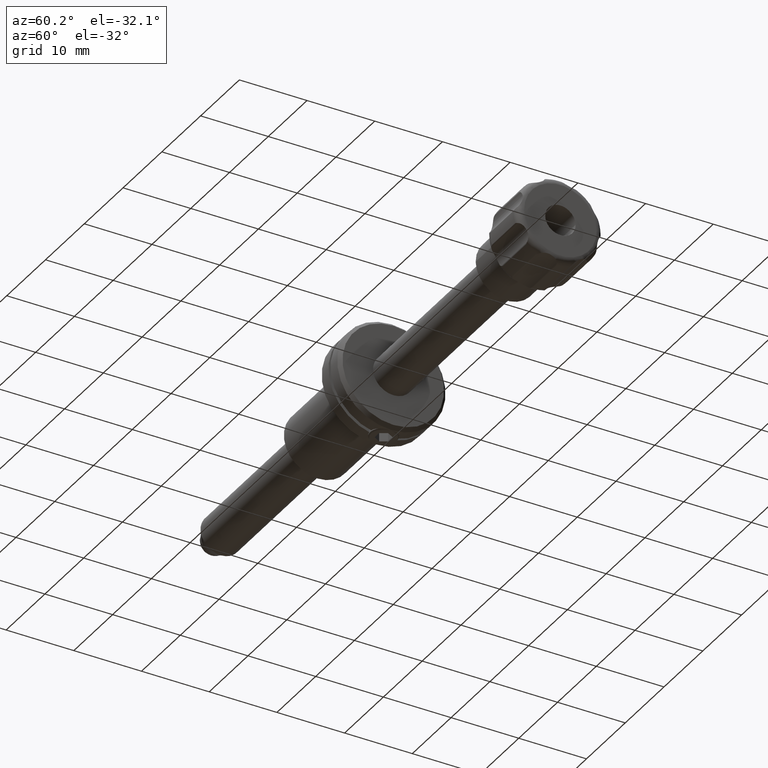
[diagram: clean part render]
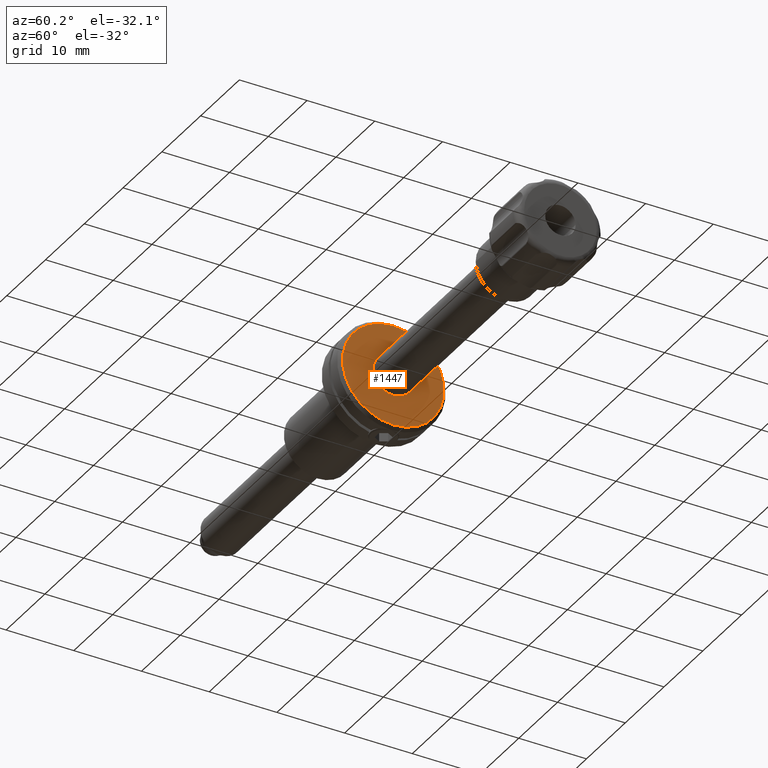
[diagram: same view with one face highlighted and labeled with its STEP entity id]
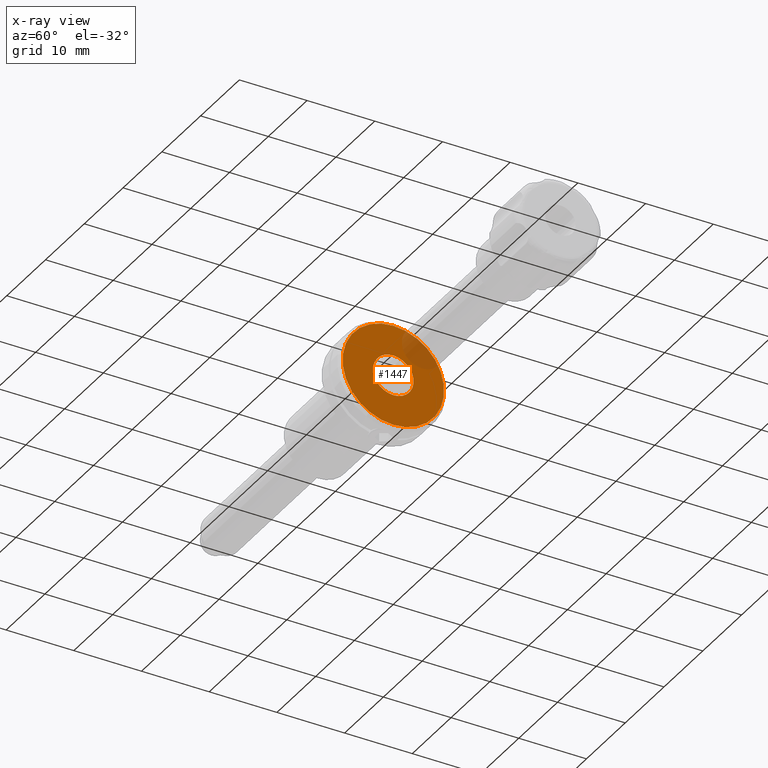
[diagram: x-ray of the same camera — body ghosted, the highlighted face saturated]
A machine part, auxiliary view. The second image highlights one B-rep face of the part: STEP entity #1447.
The next image is the same camera in x-ray: the body ghosted, the highlighted face saturated — about 11% of this face is hidden behind the body in this view.
In plain terms, the highlighted planar face has unit normal (-1, 0, -0).
Its self-contained STEP definition (entity closure, byte-faithful):
#32 = CARTESIAN_POINT ( 'NONE',  ( 4.950000000000002800, 0.0000000000000000000, 7.499999999999994700 ) ) ;
#269 = CIRCLE ( 'NONE', #3755, 7.499999999999994700 ) ;
#276 = DIRECTION ( 'NONE',  ( 1.000000000000000000, 0.0000000000000000000, 0.0000000000000000000 ) ) ;
#424 = DIRECTION ( 'NONE',  ( 1.000000000000000000, 0.0000000000000000000, 0.0000000000000000000 ) ) ;
#606 = DIRECTION ( 'NONE',  ( 0.0000000000000000000, 0.0000000000000000000, 1.000000000000000000 ) ) ;
#607 = EDGE_LOOP ( 'NONE', ( #4182, #2885 ) ) ;
#658 = CARTESIAN_POINT ( 'NONE',  ( 4.950000000000002800, 3.673940397442041600E-016, -2.999999999999985300 ) ) ;
#709 = CARTESIAN_POINT ( 'NONE',  ( 4.950000000000002800, 0.0000000000000000000, 0.0000000000000000000 ) ) ;
#745 = VERTEX_POINT ( 'NONE', #3289 ) ;
#985 = CARTESIAN_POINT ( 'NONE',  ( 4.950000000000002800, 9.491012693391983800E-016, -7.499999999999994700 ) ) ;
#1038 = DIRECTION ( 'NONE',  ( -0.0000000000000000000, 0.0000000000000000000, 1.000000000000000000 ) ) ;
#1145 = PLANE ( 'NONE',  #2243 ) ;
#1286 = EDGE_CURVE ( 'NONE', #745, #2755, #2926, .T. ) ;
#1398 = EDGE_CURVE ( 'NONE', #2755, #745, #1540, .T. ) ;
#1447 = ADVANCED_FACE ( 'NONE', ( #1983, #2834 ), #1145, .F. ) ;
#1540 = CIRCLE ( 'NONE', #3386, 2.999999999999985300 ) ;
#1686 = DIRECTION ( 'NONE',  ( -1.000000000000000000, -0.0000000000000000000, -0.0000000000000000000 ) ) ;
#1782 = EDGE_CURVE ( 'NONE', #2084, #2785, #3541, .T. ) ;
#1983 = FACE_BOUND ( 'NONE', #3412, .T. ) ;
#2076 = AXIS2_PLACEMENT_3D ( 'NONE', #4152, #276, #606 ) ;
#2084 = VERTEX_POINT ( 'NONE', #32 ) ;
#2180 = AXIS2_PLACEMENT_3D ( 'NONE', #3591, #1686, #3929 ) ;
#2243 = AXIS2_PLACEMENT_3D ( 'NONE', #709, #2652, #1038 ) ;
#2305 = DIRECTION ( 'NONE',  ( -1.000000000000000000, -0.0000000000000000000, -0.0000000000000000000 ) ) ;
#2383 = CARTESIAN_POINT ( 'NONE',  ( 4.950000000000002800, 0.0000000000000000000, 0.0000000000000000000 ) ) ;
#2652 = DIRECTION ( 'NONE',  ( -1.000000000000000000, 0.0000000000000000000, -0.0000000000000000000 ) ) ;
#2696 = DIRECTION ( 'NONE',  ( 0.0000000000000000000, 0.0000000000000000000, 1.000000000000000000 ) ) ;
#2755 = VERTEX_POINT ( 'NONE', #658 ) ;
#2785 = VERTEX_POINT ( 'NONE', #985 ) ;
#2834 = FACE_OUTER_BOUND ( 'NONE', #607, .T. ) ;
#2885 = ORIENTED_EDGE ( 'NONE', *, *, #2908, .T. ) ;
#2908 = EDGE_CURVE ( 'NONE', #2785, #2084, #269, .T. ) ;
#2922 = DIRECTION ( 'NONE',  ( 0.0000000000000000000, 0.0000000000000000000, 1.000000000000000000 ) ) ;
#2926 = CIRCLE ( 'NONE', #2180, 2.999999999999985300 ) ;
#3037 = ORIENTED_EDGE ( 'NONE', *, *, #1286, .T. ) ;
#3250 = CARTESIAN_POINT ( 'NONE',  ( 4.950000000000002800, 0.0000000000000000000, 0.0000000000000000000 ) ) ;
#3289 = CARTESIAN_POINT ( 'NONE',  ( 4.950000000000002800, 0.0000000000000000000, 2.999999999999985300 ) ) ;
#3386 = AXIS2_PLACEMENT_3D ( 'NONE', #3250, #2305, #2922 ) ;
#3412 = EDGE_LOOP ( 'NONE', ( #3037, #3947 ) ) ;
#3541 = CIRCLE ( 'NONE', #2076, 7.499999999999994700 ) ;
#3591 = CARTESIAN_POINT ( 'NONE',  ( 4.950000000000002800, 0.0000000000000000000, 0.0000000000000000000 ) ) ;
#3755 = AXIS2_PLACEMENT_3D ( 'NONE', #2383, #424, #2696 ) ;
#3929 = DIRECTION ( 'NONE',  ( 0.0000000000000000000, 0.0000000000000000000, 1.000000000000000000 ) ) ;
#3947 = ORIENTED_EDGE ( 'NONE', *, *, #1398, .T. ) ;
#4152 = CARTESIAN_POINT ( 'NONE',  ( 4.950000000000002800, 0.0000000000000000000, 0.0000000000000000000 ) ) ;
#4182 = ORIENTED_EDGE ( 'NONE', *, *, #1782, .T. ) ;